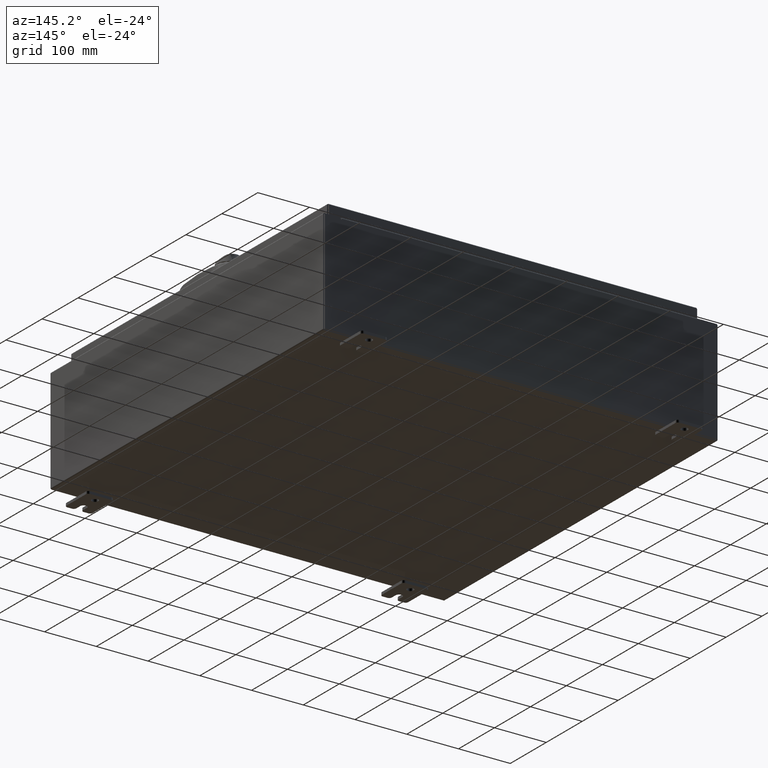
[diagram: clean part render]
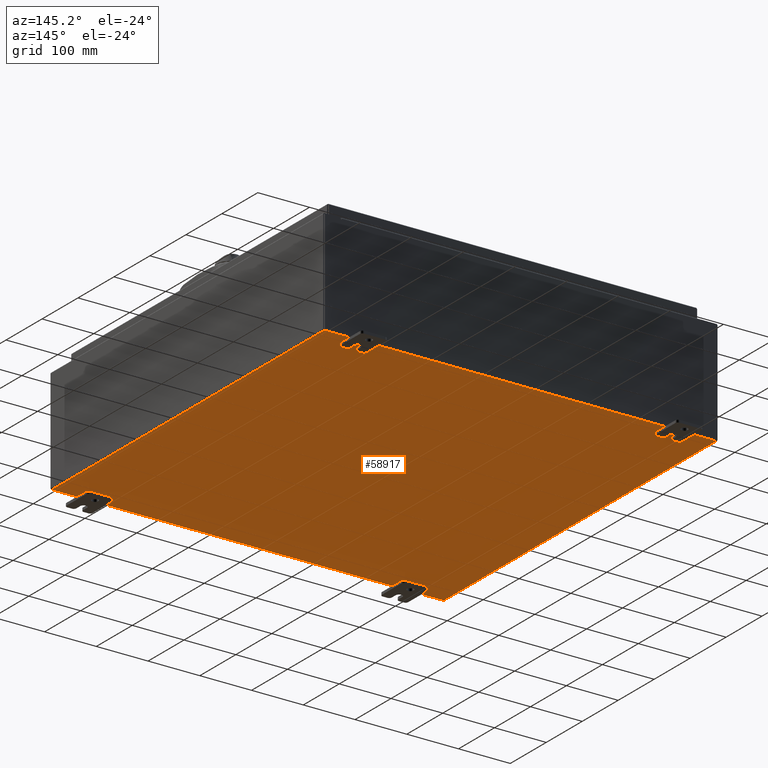
[diagram: same view with one face highlighted and labeled with its STEP entity id]
A machine part, auxiliary view. The second image highlights one B-rep face of the part: STEP entity #58917.
In plain terms, the highlighted planar face has unit normal (0, 0, -1).
Its self-contained STEP definition (entity closure, byte-faithful):
#1609 = ORIENTED_EDGE ( 'NONE', *, *, #28770, .T. ) ;
#2001 = VECTOR ( 'NONE', #63458, 39.37007874015748100 ) ;
#19415 = LINE ( 'NONE', #66220, #113708 ) ;
#19856 = EDGE_CURVE ( 'NONE', #108484, #37673, #19415, .T. ) ;
#24595 = ORIENTED_EDGE ( 'NONE', *, *, #102915, .T. ) ;
#26114 = CARTESIAN_POINT ( 'NONE',  ( 14.91230000000000000, -14.92530000000000000, -0.07470000000000000300 ) ) ;
#26241 = LINE ( 'NONE', #72627, #2001 ) ;
#28308 = DIRECTION ( 'NONE',  ( -1.000000000000000000, 0.0000000000000000000, -0.0000000000000000000 ) ) ;
#28770 = EDGE_CURVE ( 'NONE', #108484, #65627, #70623, .T. ) ;
#29506 = DIRECTION ( 'NONE',  ( 1.000000000000000000, 0.0000000000000000000, 0.0000000000000000000 ) ) ;
#37331 = EDGE_LOOP ( 'NONE', ( #82291, #1609, #91060, #24595 ) ) ;
#37673 = VERTEX_POINT ( 'NONE', #26114 ) ;
#38692 = CARTESIAN_POINT ( 'NONE',  ( -14.91230000000000000, -14.92530000000000000, -0.07469999999999994700 ) ) ;
#41121 = CARTESIAN_POINT ( 'NONE',  ( -14.91230000000000000, 14.92530000000000000, -0.07470000000000000300 ) ) ;
#45832 = CARTESIAN_POINT ( 'NONE',  ( -15.00000000000000000, 14.92530000000000000, -0.07470000000000000300 ) ) ;
#46269 = CARTESIAN_POINT ( 'NONE',  ( 0.0000000000000000000, 0.0000000000000000000, -0.07470000000000000300 ) ) ;
#50587 = VECTOR ( 'NONE', #73324, 39.37007874015748100 ) ;
#54819 = CARTESIAN_POINT ( 'NONE',  ( -14.91230000000000000, -14.92530000000000000, -0.07469999999999994700 ) ) ;
#58917 = ADVANCED_FACE ( 'NONE', ( #82916 ), #73782, .T. ) ;
#63458 = DIRECTION ( 'NONE',  ( -0.0000000000000000000, -1.000000000000000000, -0.0000000000000000000 ) ) ;
#65627 = VERTEX_POINT ( 'NONE', #41121 ) ;
#66220 = CARTESIAN_POINT ( 'NONE',  ( -15.00000000000000000, -14.92530000000000000, -0.07470000000000000300 ) ) ;
#70623 = LINE ( 'NONE', #38692, #92037 ) ;
#71937 = EDGE_CURVE ( 'NONE', #96095, #65627, #104850, .T. ) ;
#72627 = CARTESIAN_POINT ( 'NONE',  ( 14.91230000000000000, 14.92530000000000000, -0.07469999999999994700 ) ) ;
#73324 = DIRECTION ( 'NONE',  ( -1.000000000000000000, -0.0000000000000000000, -0.0000000000000000000 ) ) ;
#73782 = PLANE ( 'NONE',  #87214 ) ;
#82291 = ORIENTED_EDGE ( 'NONE', *, *, #19856, .F. ) ;
#82916 = FACE_OUTER_BOUND ( 'NONE', #37331, .T. ) ;
#82950 = DIRECTION ( 'NONE',  ( 0.0000000000000000000, 0.0000000000000000000, -1.000000000000000000 ) ) ;
#87214 = AXIS2_PLACEMENT_3D ( 'NONE', #46269, #82950, #28308 ) ;
#91060 = ORIENTED_EDGE ( 'NONE', *, *, #71937, .F. ) ;
#92037 = VECTOR ( 'NONE', #102567, 39.37007874015748100 ) ;
#96095 = VERTEX_POINT ( 'NONE', #102753 ) ;
#102567 = DIRECTION ( 'NONE',  ( -0.0000000000000000000, 1.000000000000000000, -0.0000000000000000000 ) ) ;
#102753 = CARTESIAN_POINT ( 'NONE',  ( 14.91230000000000000, 14.92530000000000000, -0.07469999999999994700 ) ) ;
#102915 = EDGE_CURVE ( 'NONE', #96095, #37673, #26241, .T. ) ;
#104850 = LINE ( 'NONE', #45832, #50587 ) ;
#108484 = VERTEX_POINT ( 'NONE', #54819 ) ;
#113708 = VECTOR ( 'NONE', #29506, 39.37007874015748100 ) ;